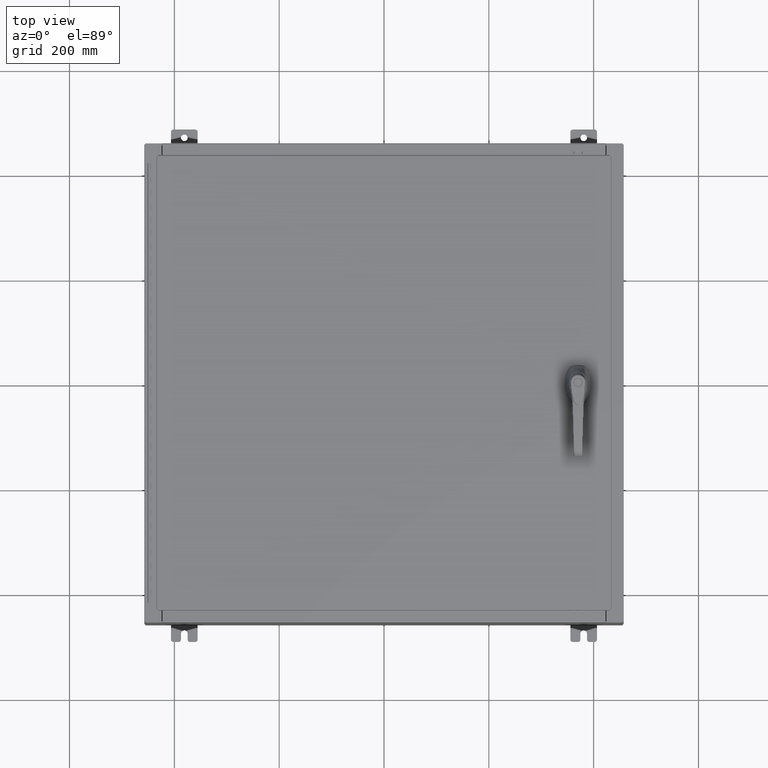
[diagram: clean part render]
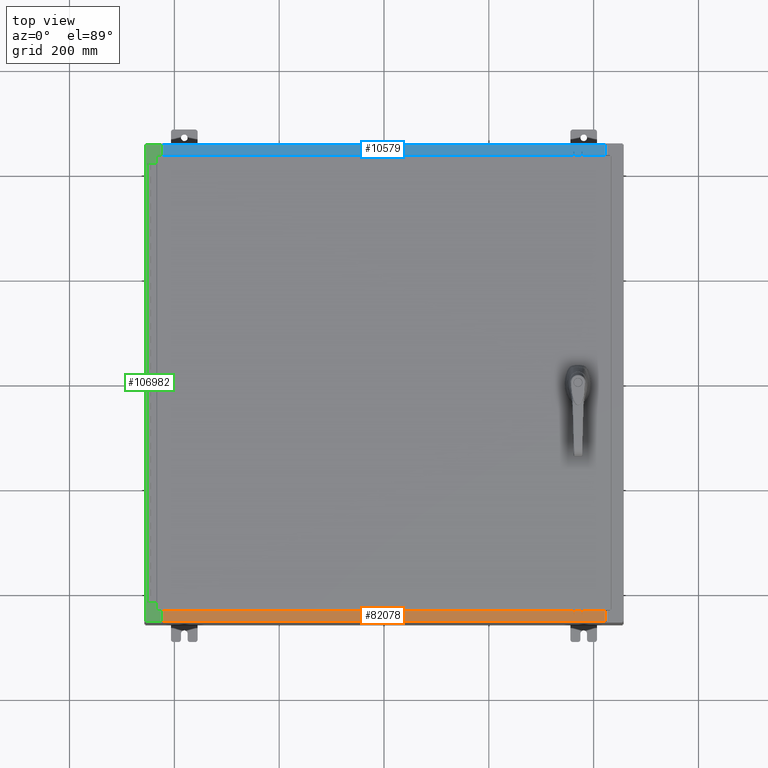
[diagram: same view with three faces highlighted in distinct colors, each labeled with its STEP entity id]
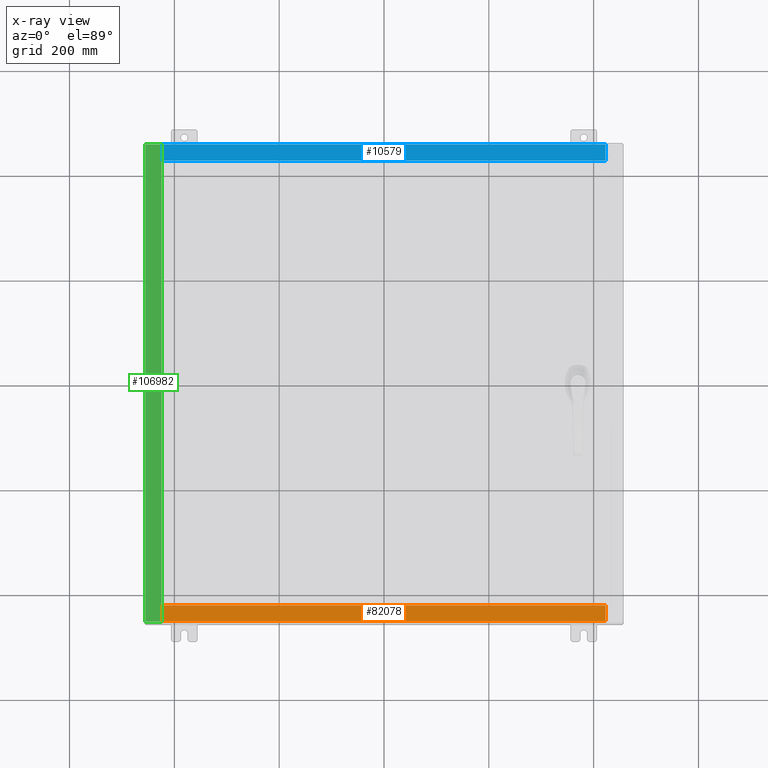
[diagram: x-ray of the same camera — body ghosted, the three highlighted faces saturated]
A machine part, top view with three faces highlighted in distinct colors.
The next image is the same camera in x-ray (body ghosted, the three faces saturated) — at least one of them is partly hidden behind the body in this view.
Their STEP definitions:

[orange] entity #82078 — the highlighted planar face has unit normal (-0, -0, 1).
#1467 = EDGE_CURVE ( 'NONE', #94899, #103852, #124671, .T. ) ;
#2453 = LINE ( 'NONE', #105007, #124962 ) ;
#6440 = ORIENTED_EDGE ( 'NONE', *, *, #104875, .F. ) ;
#11773 = FACE_OUTER_BOUND ( 'NONE', #86553, .T. ) ;
#13382 = CARTESIAN_POINT ( 'NONE',  ( -16.63719999999999600, -0.07469999999999973900, 5.999999999999999100 ) ) ;
#13384 = DIRECTION ( 'NONE',  ( 0.0000000000000000000, -1.000000000000000000, 2.674785894579892700E-015 ) ) ;
#16258 = AXIS2_PLACEMENT_3D ( 'NONE', #32367, #71314, #13384 ) ;
#27617 = DIRECTION ( 'NONE',  ( -0.0000000000000000000, -1.000000000000000000, 3.566381192773190000E-015 ) ) ;
#27836 = VECTOR ( 'NONE', #41766, 39.37007874015748100 ) ;
#32367 = CARTESIAN_POINT ( 'NONE',  ( -2.276882898771239300E-018, 1.610972251716581800E-014, 5.999999999999999100 ) ) ;
#41766 = DIRECTION ( 'NONE',  ( -1.000000000000000000, 0.0000000000000000000, 0.0000000000000000000 ) ) ;
#43580 = DIRECTION ( 'NONE',  ( -1.000000000000000000, 3.284023746380717400E-017, -8.784060394284559800E-032 ) ) ;
#48622 = EDGE_CURVE ( 'NONE', #72985, #94899, #2453, .T. ) ;
#49215 = ORIENTED_EDGE ( 'NONE', *, *, #118554, .T. ) ;
#49318 = ORIENTED_EDGE ( 'NONE', *, *, #48622, .F. ) ;
#59543 = LINE ( 'NONE', #13382, #107960 ) ;
#61561 = PLANE ( 'NONE',  #16258 ) ;
#63537 = CARTESIAN_POINT ( 'NONE',  ( -16.63719999999999600, -1.287299999999998600, 6.000000000000002700 ) ) ;
#71314 = DIRECTION ( 'NONE',  ( 0.0000000000000000000, 2.674785894579892700E-015, 1.000000000000000000 ) ) ;
#72985 = VERTEX_POINT ( 'NONE', #102795 ) ;
#78488 = LINE ( 'NONE', #91731, #101166 ) ;
#82078 = ADVANCED_FACE ( 'NONE', ( #11773 ), #61561, .T. ) ;
#86385 = VERTEX_POINT ( 'NONE', #95015 ) ;
#86553 = EDGE_LOOP ( 'NONE', ( #6440, #108698, #49318, #49215 ) ) ;
#89913 = CARTESIAN_POINT ( 'NONE',  ( 16.63720000000000400, -1.287299999999999400, 6.000000000000001800 ) ) ;
#91731 = CARTESIAN_POINT ( 'NONE',  ( -5.156971724347648400E-018, -0.08769999999999972300, 5.999999999999999100 ) ) ;
#94899 = VERTEX_POINT ( 'NONE', #120875 ) ;
#95015 = CARTESIAN_POINT ( 'NONE',  ( -16.63719999999999600, -0.08769999999999972300, 5.999999999999999100 ) ) ;
#101166 = VECTOR ( 'NONE', #43580, 39.37007874015748100 ) ;
#102795 = CARTESIAN_POINT ( 'NONE',  ( 16.63720000000000400, -0.08769999999999948700, 5.999999999999999100 ) ) ;
#103852 = VERTEX_POINT ( 'NONE', #63537 ) ;
#104875 = EDGE_CURVE ( 'NONE', #103852, #86385, #59543, .T. ) ;
#105007 = CARTESIAN_POINT ( 'NONE',  ( 16.63720000000000400, -1.300299999999999800, 6.000000000000003600 ) ) ;
#107960 = VECTOR ( 'NONE', #109358, 39.37007874015748100 ) ;
#108698 = ORIENTED_EDGE ( 'NONE', *, *, #1467, .F. ) ;
#109358 = DIRECTION ( 'NONE',  ( -0.0000000000000000000, 1.000000000000000000, -2.674785894579892700E-015 ) ) ;
#118554 = EDGE_CURVE ( 'NONE', #72985, #86385, #78488, .T. ) ;
#120875 = CARTESIAN_POINT ( 'NONE',  ( 16.63720000000000400, -1.287299999999999400, 6.000000000000003600 ) ) ;
#124671 = LINE ( 'NONE', #89913, #27836 ) ;
#124962 = VECTOR ( 'NONE', #27617, 39.37007874015748100 ) ;

[blue] entity #10579 — the highlighted planar face has unit normal (0, 0, 1).
#9556 = VECTOR ( 'NONE', #94064, 39.37007874015748100 ) ;
#10579 = ADVANCED_FACE ( 'NONE', ( #34120 ), #14493, .T. ) ;
#11802 = VERTEX_POINT ( 'NONE', #78910 ) ;
#14493 = PLANE ( 'NONE',  #72715 ) ;
#16726 = CARTESIAN_POINT ( 'NONE',  ( -16.63719999999999600, -0.07469999999999973900, 5.999999999999999100 ) ) ;
#24150 = DIRECTION ( 'NONE',  ( 0.0000000000000000000, 2.674785894579892700E-015, 1.000000000000000000 ) ) ;
#34120 = FACE_OUTER_BOUND ( 'NONE', #100506, .T. ) ;
#38844 = LINE ( 'NONE', #70886, #63235 ) ;
#38854 = CARTESIAN_POINT ( 'NONE',  ( 16.63720000000000400, -1.300299999999999800, 6.000000000000003600 ) ) ;
#40781 = EDGE_CURVE ( 'NONE', #59287, #83381, #111137, .T. ) ;
#52039 = CARTESIAN_POINT ( 'NONE',  ( 16.63720000000000400, -1.287299999999999400, 6.000000000000003600 ) ) ;
#52140 = ORIENTED_EDGE ( 'NONE', *, *, #102255, .T. ) ;
#59287 = VERTEX_POINT ( 'NONE', #110432 ) ;
#63235 = VECTOR ( 'NONE', #109360, 39.37007874015748100 ) ;
#69000 = LINE ( 'NONE', #83529, #117374 ) ;
#69599 = ORIENTED_EDGE ( 'NONE', *, *, #40781, .F. ) ;
#70886 = CARTESIAN_POINT ( 'NONE',  ( 16.63720000000000400, -1.287299999999999400, 6.000000000000001800 ) ) ;
#72715 = AXIS2_PLACEMENT_3D ( 'NONE', #120558, #24150, #91794 ) ;
#73444 = EDGE_CURVE ( 'NONE', #102264, #11802, #86679, .T. ) ;
#78910 = CARTESIAN_POINT ( 'NONE',  ( -16.63719999999999600, -0.08769999999999972300, 5.999999999999999100 ) ) ;
#82057 = EDGE_CURVE ( 'NONE', #83381, #102264, #38844, .T. ) ;
#83381 = VERTEX_POINT ( 'NONE', #52039 ) ;
#83529 = CARTESIAN_POINT ( 'NONE',  ( -5.156971724347648400E-018, -0.08769999999999972300, 5.999999999999999100 ) ) ;
#85368 = VECTOR ( 'NONE', #115779, 39.37007874015748100 ) ;
#86679 = LINE ( 'NONE', #16726, #9556 ) ;
#89698 = ORIENTED_EDGE ( 'NONE', *, *, #82057, .F. ) ;
#91794 = DIRECTION ( 'NONE',  ( 0.0000000000000000000, -1.000000000000000000, 2.674785894579892700E-015 ) ) ;
#94064 = DIRECTION ( 'NONE',  ( -0.0000000000000000000, 1.000000000000000000, -2.674785894579892700E-015 ) ) ;
#100506 = EDGE_LOOP ( 'NONE', ( #106126, #89698, #69599, #52140 ) ) ;
#102255 = EDGE_CURVE ( 'NONE', #59287, #11802, #69000, .T. ) ;
#102264 = VERTEX_POINT ( 'NONE', #112706 ) ;
#106126 = ORIENTED_EDGE ( 'NONE', *, *, #73444, .F. ) ;
#109360 = DIRECTION ( 'NONE',  ( -1.000000000000000000, 0.0000000000000000000, 0.0000000000000000000 ) ) ;
#110432 = CARTESIAN_POINT ( 'NONE',  ( 16.63720000000000400, -0.08769999999999948700, 5.999999999999999100 ) ) ;
#111137 = LINE ( 'NONE', #38854, #85368 ) ;
#112706 = CARTESIAN_POINT ( 'NONE',  ( -16.63719999999999600, -1.287299999999998600, 6.000000000000002700 ) ) ;
#115779 = DIRECTION ( 'NONE',  ( -0.0000000000000000000, -1.000000000000000000, 3.566381192773190000E-015 ) ) ;
#117374 = VECTOR ( 'NONE', #121572, 39.37007874015748100 ) ;
#120558 = CARTESIAN_POINT ( 'NONE',  ( -2.276882898771239300E-018, 1.610972251716581800E-014, 5.999999999999999100 ) ) ;
#121572 = DIRECTION ( 'NONE',  ( -1.000000000000000000, 3.284023746380717400E-017, -8.784060394284559800E-032 ) ) ;

[green] entity #106982 — the highlighted planar face has unit normal (0, 0, -1).
#236 = CARTESIAN_POINT ( 'NONE',  ( -16.69970000000004300, 16.63110000000000400, 11.92530000000000900 ) ) ;
#1797 = ORIENTED_EDGE ( 'NONE', *, *, #85675, .F. ) ;
#2423 = CARTESIAN_POINT ( 'NONE',  ( -17.91230000000004100, -17.92530000000000000, 11.92530000000000400 ) ) ;
#3406 = CARTESIAN_POINT ( 'NONE',  ( -16.69970000000004300, 0.0000000000000000000, 11.92530000000000900 ) ) ;
#7159 = CARTESIAN_POINT ( 'NONE',  ( -8.532114493236880700E-014, 17.92530000000000000, 11.92530000000013000 ) ) ;
#7253 = CARTESIAN_POINT ( 'NONE',  ( -16.75005000000004100, -16.61242500000000200, 11.92530000000001200 ) ) ;
#8466 = LINE ( 'NONE', #78319, #108338 ) ;
#9468 = CARTESIAN_POINT ( 'NONE',  ( -16.71270000000004400, 16.59375000000000000, 11.92530000000001200 ) ) ;
#11372 = EDGE_CURVE ( 'NONE', #111346, #81856, #111952, .T. ) ;
#11831 = PLANE ( 'NONE',  #66081 ) ;
#13542 = ORIENTED_EDGE ( 'NONE', *, *, #11372, .T. ) ;
#13841 = VERTEX_POINT ( 'NONE', #80984 ) ;
#16943 = DIRECTION ( 'NONE',  ( 1.000000000000000000, 0.0000000000000000000, 0.0000000000000000000 ) ) ;
#18373 = VECTOR ( 'NONE', #29378, 39.37007874015748100 ) ;
#18518 = CIRCLE ( 'NONE', #81847, 0.01867499999999949400 ) ;
#18624 = DIRECTION ( 'NONE',  ( 1.000000000000000000, 0.0000000000000000000, 0.0000000000000000000 ) ) ;
#19240 = LINE ( 'NONE', #95961, #64655 ) ;
#20321 = ORIENTED_EDGE ( 'NONE', *, *, #113340, .F. ) ;
#21506 = DIRECTION ( 'NONE',  ( 7.132762385546384700E-015, 0.0000000000000000000, -1.000000000000000000 ) ) ;
#22462 = CARTESIAN_POINT ( 'NONE',  ( -17.91230000000004100, 17.92530000000000000, 11.92530000000000400 ) ) ;
#23359 = VERTEX_POINT ( 'NONE', #54898 ) ;
#23749 = CARTESIAN_POINT ( 'NONE',  ( -16.75005000000004100, -16.59375000000000000, 11.92530000000000900 ) ) ;
#26980 = DIRECTION ( 'NONE',  ( -1.000000000000000000, 0.0000000000000000000, -7.132762385546384700E-015 ) ) ;
#29378 = DIRECTION ( 'NONE',  ( -1.000000000000000000, -4.340572780400098900E-014, 4.340572780400098900E-014 ) ) ;
#30208 = CARTESIAN_POINT ( 'NONE',  ( -16.75005000000004100, 16.61242500000000200, 11.92530000000001200 ) ) ;
#31835 = VERTEX_POINT ( 'NONE', #9468 ) ;
#33078 = ORIENTED_EDGE ( 'NONE', *, *, #37609, .F. ) ;
#33245 = EDGE_CURVE ( 'NONE', #13841, #92624, #34552, .T. ) ;
#34552 = LINE ( 'NONE', #56078, #82955 ) ;
#34791 = VECTOR ( 'NONE', #64618, 39.37007874015748100 ) ;
#36229 = ORIENTED_EDGE ( 'NONE', *, *, #75000, .F. ) ;
#36271 = CARTESIAN_POINT ( 'NONE',  ( -16.69970000000004300, 16.63110000000000400, 11.92530000000000900 ) ) ;
#37609 = EDGE_CURVE ( 'NONE', #99554, #31835, #19240, .T. ) ;
#38324 = VERTEX_POINT ( 'NONE', #36271 ) ;
#39008 = EDGE_CURVE ( 'NONE', #23359, #105936, #8466, .T. ) ;
#39044 = ORIENTED_EDGE ( 'NONE', *, *, #86364, .T. ) ;
#39960 = DIRECTION ( 'NONE',  ( 1.000000000000000000, 0.0000000000000000000, 0.0000000000000000000 ) ) ;
#45499 = CARTESIAN_POINT ( 'NONE',  ( -16.69970000000004300, 17.92530000000000000, 11.92530000000000900 ) ) ;
#46460 = ORIENTED_EDGE ( 'NONE', *, *, #87058, .T. ) ;
#47173 = LINE ( 'NONE', #236, #18373 ) ;
#48811 = CARTESIAN_POINT ( 'NONE',  ( -16.69970000000004300, 0.0000000000000000000, 11.92530000000000900 ) ) ;
#49517 = DIRECTION ( 'NONE',  ( -0.0000000000000000000, 1.000000000000000000, -0.0000000000000000000 ) ) ;
#49572 = DIRECTION ( 'NONE',  ( 1.000000000000000000, -4.340572780400098900E-014, -4.340572780400098900E-014 ) ) ;
#51191 = DIRECTION ( 'NONE',  ( 0.0000000000000000000, 1.000000000000000000, 0.0000000000000000000 ) ) ;
#51859 = VECTOR ( 'NONE', #51191, 39.37007874015748100 ) ;
#54898 = CARTESIAN_POINT ( 'NONE',  ( -16.75005000000004100, -16.63110000000000000, 11.92530000000000900 ) ) ;
#54926 = CARTESIAN_POINT ( 'NONE',  ( -8.532114493236880700E-014, -17.92530000000000000, 11.92530000000013000 ) ) ;
#56078 = CARTESIAN_POINT ( 'NONE',  ( -16.71270000000004400, -16.59375000000000000, 11.92530000000001200 ) ) ;
#56524 = LINE ( 'NONE', #7159, #82280 ) ;
#57118 = EDGE_CURVE ( 'NONE', #92624, #23359, #63287, .T. ) ;
#58504 = DIRECTION ( 'NONE',  ( 0.0000000000000000000, 1.000000000000000000, 0.0000000000000000000 ) ) ;
#59215 = EDGE_LOOP ( 'NONE', ( #36229, #94950, #39044, #104352, #13542, #46460, #64119, #95383, #90925, #1797, #33078, #20321 ) ) ;
#63287 = CIRCLE ( 'NONE', #107189, 0.01867499999999949400 ) ;
#64119 = ORIENTED_EDGE ( 'NONE', *, *, #39008, .F. ) ;
#64618 = DIRECTION ( 'NONE',  ( 1.000000000000000000, -0.0000000000000000000, 7.132762385546384700E-015 ) ) ;
#64655 = VECTOR ( 'NONE', #18624, 39.37007874015748100 ) ;
#66081 = AXIS2_PLACEMENT_3D ( 'NONE', #98445, #21506, #89143 ) ;
#66180 = CARTESIAN_POINT ( 'NONE',  ( -16.71270000000004400, 16.59375000000000000, 11.92530000000001200 ) ) ;
#68369 = CARTESIAN_POINT ( 'NONE',  ( -16.69970000000004300, -17.92530000000000000, 11.92530000000000900 ) ) ;
#74188 = EDGE_CURVE ( 'NONE', #111346, #121266, #115344, .T. ) ;
#74872 = DIRECTION ( 'NONE',  ( -7.132762385546384700E-015, -0.0000000000000000000, 1.000000000000000000 ) ) ;
#75000 = EDGE_CURVE ( 'NONE', #38324, #81267, #47173, .T. ) ;
#75907 = DIRECTION ( 'NONE',  ( -0.0000000000000000000, -1.000000000000000000, -0.0000000000000000000 ) ) ;
#78319 = CARTESIAN_POINT ( 'NONE',  ( -16.75005000000004100, -16.63110000000000000, 11.92530000000001200 ) ) ;
#80984 = CARTESIAN_POINT ( 'NONE',  ( -16.71270000000004400, -16.59375000000000000, 11.92530000000001200 ) ) ;
#81267 = VERTEX_POINT ( 'NONE', #93472 ) ;
#81847 = AXIS2_PLACEMENT_3D ( 'NONE', #30208, #97822, #39960 ) ;
#81856 = VERTEX_POINT ( 'NONE', #68369 ) ;
#82280 = VECTOR ( 'NONE', #26980, 39.37007874015748100 ) ;
#82955 = VECTOR ( 'NONE', #123710, 39.37007874015748100 ) ;
#85675 = EDGE_CURVE ( 'NONE', #31835, #13841, #102037, .T. ) ;
#86364 = EDGE_CURVE ( 'NONE', #96953, #121266, #56524, .T. ) ;
#87058 = EDGE_CURVE ( 'NONE', #81856, #105936, #113939, .T. ) ;
#88162 = VECTOR ( 'NONE', #58504, 39.37007874015748100 ) ;
#89143 = DIRECTION ( 'NONE',  ( -1.000000000000000000, 0.0000000000000000000, -7.132762385546384700E-015 ) ) ;
#89594 = VECTOR ( 'NONE', #49517, 39.37007874015748100 ) ;
#90925 = ORIENTED_EDGE ( 'NONE', *, *, #33245, .F. ) ;
#92624 = VERTEX_POINT ( 'NONE', #23749 ) ;
#93472 = CARTESIAN_POINT ( 'NONE',  ( -16.75005000000004100, 16.63110000000000000, 11.92530000000000900 ) ) ;
#94950 = ORIENTED_EDGE ( 'NONE', *, *, #115068, .T. ) ;
#95383 = ORIENTED_EDGE ( 'NONE', *, *, #57118, .F. ) ;
#95961 = CARTESIAN_POINT ( 'NONE',  ( -16.75005000000004100, 16.59375000000000000, 11.92530000000001200 ) ) ;
#96953 = VERTEX_POINT ( 'NONE', #45499 ) ;
#97653 = CARTESIAN_POINT ( 'NONE',  ( -17.91230000000004100, 17.92530000000000000, 11.92530000000000400 ) ) ;
#97822 = DIRECTION ( 'NONE',  ( -7.132762385546384700E-015, -0.0000000000000000000, 1.000000000000000000 ) ) ;
#98445 = CARTESIAN_POINT ( 'NONE',  ( -8.532114493236880700E-014, 0.0000000000000000000, 11.92530000000013000 ) ) ;
#98970 = VECTOR ( 'NONE', #75907, 39.37007874015748100 ) ;
#99554 = VERTEX_POINT ( 'NONE', #106948 ) ;
#102037 = LINE ( 'NONE', #66180, #98970 ) ;
#104352 = ORIENTED_EDGE ( 'NONE', *, *, #74188, .F. ) ;
#105936 = VERTEX_POINT ( 'NONE', #120716 ) ;
#106948 = CARTESIAN_POINT ( 'NONE',  ( -16.75005000000004100, 16.59375000000000000, 11.92530000000000900 ) ) ;
#106982 = ADVANCED_FACE ( 'NONE', ( #110291 ), #11831, .F. ) ;
#107189 = AXIS2_PLACEMENT_3D ( 'NONE', #7253, #74872, #16943 ) ;
#108338 = VECTOR ( 'NONE', #49572, 39.37007874015748100 ) ;
#110291 = FACE_OUTER_BOUND ( 'NONE', #59215, .T. ) ;
#111346 = VERTEX_POINT ( 'NONE', #2423 ) ;
#111952 = LINE ( 'NONE', #54926, #34791 ) ;
#113340 = EDGE_CURVE ( 'NONE', #81267, #99554, #18518, .T. ) ;
#113939 = LINE ( 'NONE', #48811, #88162 ) ;
#115068 = EDGE_CURVE ( 'NONE', #38324, #96953, #119838, .T. ) ;
#115344 = LINE ( 'NONE', #97653, #89594 ) ;
#119838 = LINE ( 'NONE', #3406, #51859 ) ;
#120716 = CARTESIAN_POINT ( 'NONE',  ( -16.69970000000004300, -16.63110000000000400, 11.92530000000000900 ) ) ;
#121266 = VERTEX_POINT ( 'NONE', #22462 ) ;
#123710 = DIRECTION ( 'NONE',  ( -1.000000000000000000, 0.0000000000000000000, 0.0000000000000000000 ) ) ;